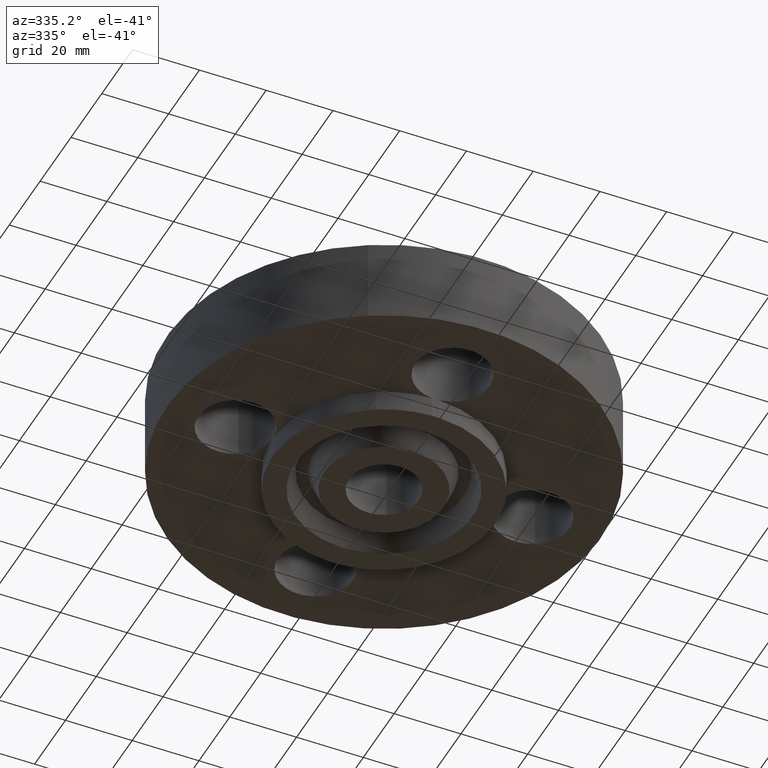
[diagram: clean part render]
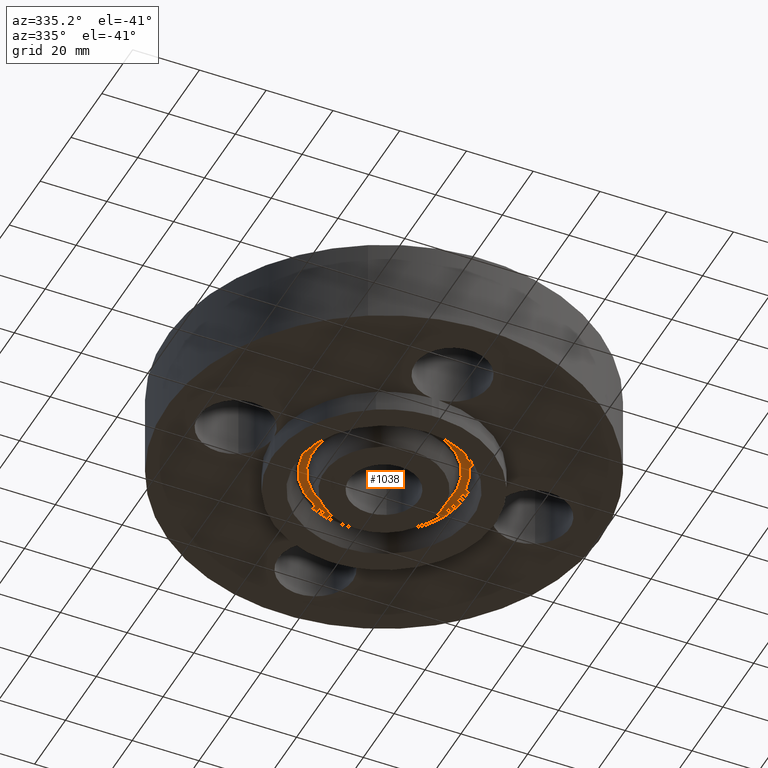
[diagram: same view with one face highlighted and labeled with its STEP entity id]
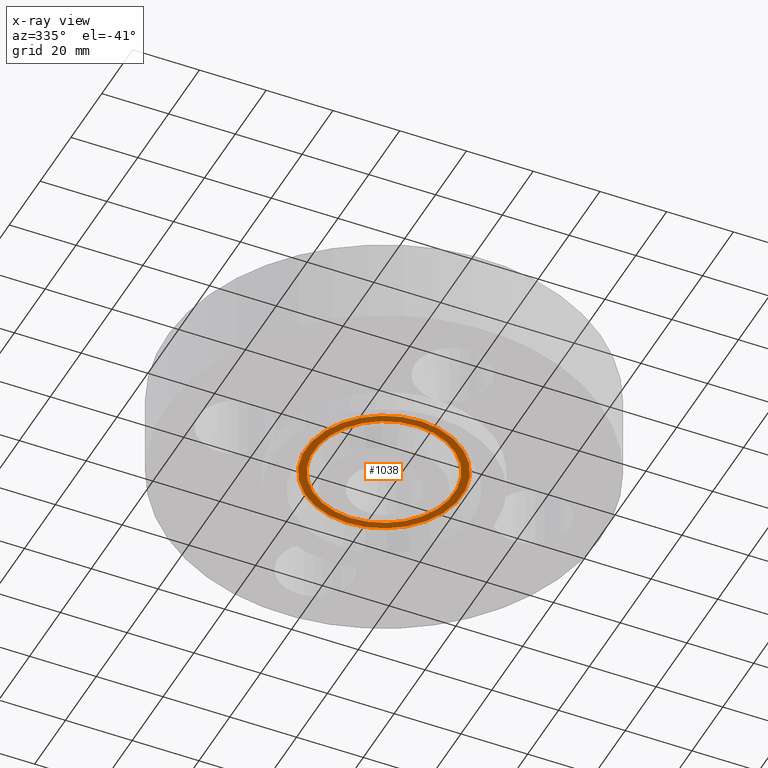
[diagram: x-ray of the same camera — body ghosted, the highlighted face saturated]
A machine part, auxiliary view. The second image highlights one B-rep face of the part: STEP entity #1038.
The next image is the same camera in x-ray: the body ghosted, the highlighted face saturated — about 0% of this face is hidden behind the body in this view.
In plain terms, the highlighted planar face has unit normal (0, 0, -1).
Its self-contained STEP definition (entity closure, byte-faithful):
#638=AXIS2_PLACEMENT_3D('Plane Axis2P3D',#635,#636,#637) ;
#960=AXIS2_PLACEMENT_3D('Circle Axis2P3D',#958,#959,$) ;
#1006=AXIS2_PLACEMENT_3D('Circle Axis2P3D',#1004,#1005,$) ;
#1022=AXIS2_PLACEMENT_3D('Circle Axis2P3D',#1020,#1021,$) ;
#1031=AXIS2_PLACEMENT_3D('Circle Axis2P3D',#1029,#1030,$) ;
#635=CARTESIAN_POINT('Axis2P3D Location',(0.,1.31250000001,0.)) ;
#955=CARTESIAN_POINT('Vertex',(-0.441245451982,0.807694382115,-3.49676543189E-017)) ;
#958=CARTESIAN_POINT('Axis2P3D Location',(0.,0.,-3.49676543189E-017)) ;
#962=CARTESIAN_POINT('Vertex',(0.441245451982,-0.807694382115,-3.49676543189E-017)) ;
#1004=CARTESIAN_POINT('Axis2P3D Location',(0.,0.,-3.49676543189E-017)) ;
#1020=CARTESIAN_POINT('Axis2P3D Location',(0.,0.,0.)) ;
#1024=CARTESIAN_POINT('Vertex',(0.397749240578,-0.728075101199,3.93386111088E-017)) ;
#1026=CARTESIAN_POINT('Vertex',(-0.397749240578,0.728075101199,3.93386111088E-017)) ;
#1029=CARTESIAN_POINT('Axis2P3D Location',(0.,0.,0.)) ;
#636=DIRECTION('Axis2P3D Direction',(0.,0.,-0.0393700787402)) ;
#637=DIRECTION('Axis2P3D XDirection',(0.0393700787402,0.,0.)) ;
#959=DIRECTION('Axis2P3D Direction',(0.,0.,0.0393700787402)) ;
#1005=DIRECTION('Axis2P3D Direction',(0.,0.,0.0393700787402)) ;
#1021=DIRECTION('Axis2P3D Direction',(0.,0.,-0.0393700787402)) ;
#1030=DIRECTION('Axis2P3D Direction',(0.,0.,-0.0393700787402)) ;
#1017=ORIENTED_EDGE('',*,*,#964,.F.) ;
#1018=ORIENTED_EDGE('',*,*,#1008,.F.) ;
#1035=ORIENTED_EDGE('',*,*,#1028,.T.) ;
#1036=ORIENTED_EDGE('',*,*,#1033,.T.) ;
#1037=FACE_BOUND('',#1034,.T.) ;
#1038=ADVANCED_FACE('PartBody',(#1019,#1037),#639,.T.) ;
#961=CIRCLE('generated circle',#960,0.920362843554) ;
#1007=CIRCLE('generated circle',#1006,0.920362843554) ;
#1023=CIRCLE('generated circle',#1022,0.829637156453) ;
#1032=CIRCLE('generated circle',#1031,0.829637156453) ;
#964=EDGE_CURVE('',#956,#963,#961,.T.) ;
#1008=EDGE_CURVE('',#963,#956,#1007,.T.) ;
#1028=EDGE_CURVE('',#1025,#1027,#1023,.F.) ;
#1033=EDGE_CURVE('',#1027,#1025,#1032,.F.) ;
#1016=EDGE_LOOP('',(#1017,#1018)) ;
#1034=EDGE_LOOP('',(#1035,#1036)) ;
#1019=FACE_OUTER_BOUND('',#1016,.T.) ;
#639=PLANE('',#638) ;
#956=VERTEX_POINT('',#955) ;
#963=VERTEX_POINT('',#962) ;
#1025=VERTEX_POINT('',#1024) ;
#1027=VERTEX_POINT('',#1026) ;